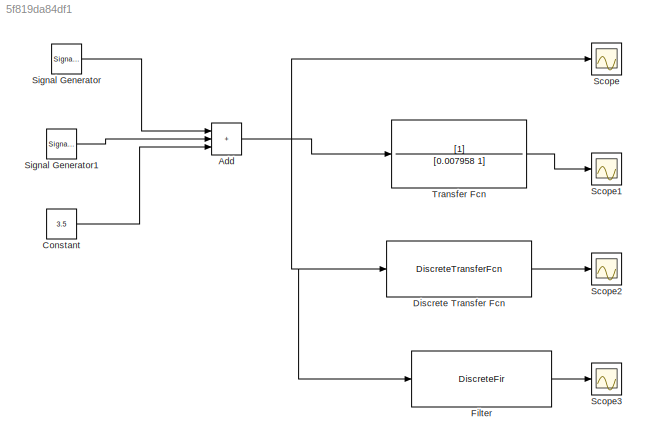
MODEL slx_5f819da84df1
KIND model
CONFIG AbsTol = auto
CONFIG EnableMultiTasking = off
CONFIG FixedStep = auto
CONFIG MaxStep = auto
CONFIG MinStep = auto
CONFIG RelTol = 1e-3
CONFIG SampleTimeConstraint = Unconstrained
CONFIG SolverName = VariableStepAuto
CONFIG StartTime = 0.0
CONFIG StopTime = 5
BLOCK [Sum] Add
  IconShape = rectangular
  Inputs = +++
BLOCK [Constant] Constant
  Value = 3.5
BLOCK [DiscreteTransferFcn] Discrete Transfer Fcn
  Denominator = [1 -0.2283]
  InputPortMap = u0
  Numerator = [0.3859 0.3859]
  SampleTime = 0.01
BLOCK [DiscreteFir] Filter
  Coefficients = [0 0.0184617817076260203 0.0680541696671083801 0.130643334905041958 0.18197961203066973 0.201722203379107984 0.18197961203066973 0.130643334905041958 0.0680541696671083801 0.0184617817076260203 0]
  InputPortMap = u0
  InputProcessing = Columns as channels (frame based)
  OutputPortMap = o0
  Tag = BlockMethodSubSystem
BLOCK [Scope] Scope
  Floating = off
  NumInputPorts = 1
  ScopeSpecificationString = Simulink.scopes.TimeScopeBlockCfg('CurrentConfiguration', extmgr.ConfigurationSet(extmgr.Configuration('Core','General UI',true),extmgr.Configuration('Core','Source UI',true),extmgr.Configuration('Sources','WiredSimulink',true),extmgr.Configuration('Visuals','Time Domain',true,'SerializedDisplays',{struct('MinYLimReal','-0.68219','MaxYLimReal','7.68219','YLabelReal','','MinYLimMag','0.00000','MaxY...<+1346ch>
BLOCK [Scope] Scope1
  Floating = off
  NumInputPorts = 1
  ScopeSpecificationString = Simulink.scopes.TimeScopeBlockCfg('CurrentConfiguration', extmgr.ConfigurationSet(extmgr.Configuration('Core','General UI',true),extmgr.Configuration('Core','Source UI',true),extmgr.Configuration('Sources','WiredSimulink',true,'DataLoggingVariableName','ScopeData1'),extmgr.Configuration('Visuals','Time Domain',true,'SerializedDisplays',{struct('MinYLimReal','-0.81835','MaxYLimReal','7.36512','YLab...<+1387ch>
BLOCK [Scope] Scope2
  Floating = off
  NumInputPorts = 1
  ScopeSpecificationString = Simulink.scopes.TimeScopeBlockCfg('CurrentConfiguration', extmgr.ConfigurationSet(extmgr.Configuration('Core','General UI',true),extmgr.Configuration('Core','Source UI',true),extmgr.Configuration('Sources','WiredSimulink',true,'DataLoggingVariableName','ScopeData2'),extmgr.Configuration('Visuals','Time Domain',true,'SerializedDisplays',{struct('MinYLimReal','-0.24504','MaxYLimReal','7.24595','YLab...<+1409ch>
BLOCK [Scope] Scope3
  Floating = off
  NumInputPorts = 1
  ScopeSpecificationString = Simulink.scopes.TimeScopeBlockCfg('CurrentConfiguration', extmgr.ConfigurationSet(extmgr.Configuration('Core','General UI',true),extmgr.Configuration('Core','Source UI',true),extmgr.Configuration('Sources','WiredSimulink',true,'DataLoggingVariableName','ScopeData3'),extmgr.Configuration('Visuals','Time Domain',true,'SerializedDisplays',{struct('MinYLimReal','-0.81012','MaxYLimReal','7.29107','YLab...<+1392ch>
BLOCK [SignalGenerator] Signal Generator
  Amplitude = 3
BLOCK [SignalGenerator] Signal Generator1
  Amplitude = 0.4
  Frequency = 100
BLOCK [TransferFcn] Transfer Fcn
  Denominator = [0.007958 1]
NET Add:1 -> Discrete Transfer Fcn:1, Filter:1, Scope:1, Transfer Fcn:1
LINE Constant:1 -> Add:3
LINE Discrete Transfer Fcn:1 -> Scope2:1
LINE Filter:1 -> Scope3:1
LINE Signal Generator1:1 -> Add:2
LINE Signal Generator:1 -> Add:1
LINE Transfer Fcn:1 -> Scope1:1
note: NET lines group one-source signal fan-out (src -> all destinations, sorted); 1:1 wires keep LINE
